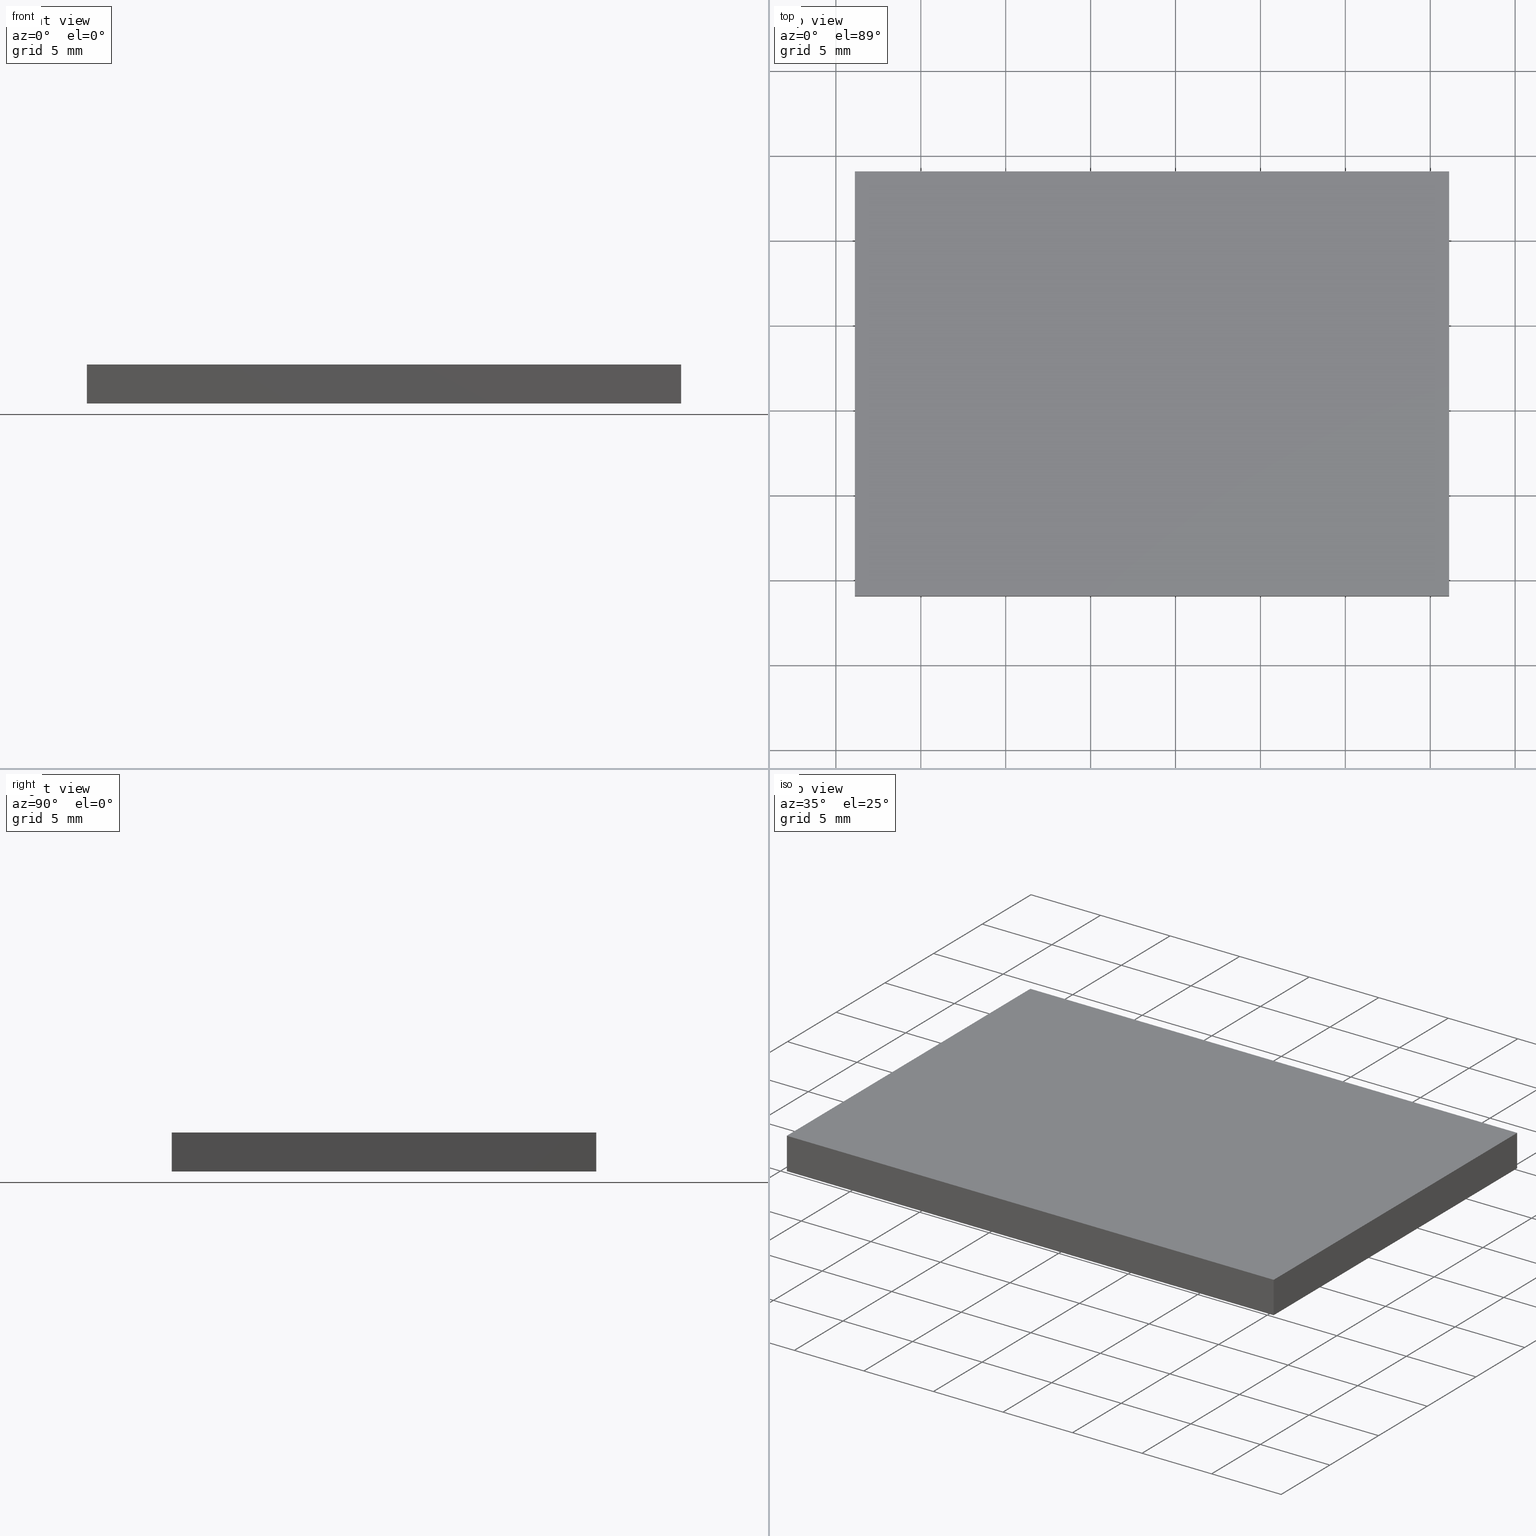
[diagram: canonical four-view strip — front | top / right | iso, engineering-drawing reading convention]
A machine part, canonical four-view strip (front | top / right | iso — engineering-drawing reading convention). The complete STEP part file that produces these views, byte-faithful:
ISO-10303-21;
HEADER;
FILE_DESCRIPTION (( 'STEP AP214' ),
    '1' );
FILE_NAME ('302518.STEP',
    '2019-08-13T06:06:02',
    ( '' ),
    ( '' ),
    'SwSTEP 2.0',
    'SolidWorks 2016',
    '' );
FILE_SCHEMA (( 'AUTOMOTIVE_DESIGN' ));
ENDSEC;

DATA;
#1 = CARTESIAN_POINT ( 'NONE',  ( 126.1149839422837100, 74.06324183452659300, 0.0000000000000000000 ) ) ;
#2 = ORIENTED_EDGE ( 'NONE', *, *, #110, .T. ) ;
#3 = VECTOR ( 'NONE', #91, 1000.000000000000000 ) ;
#4 =( NAMED_UNIT ( * ) PLANE_ANGLE_UNIT ( ) SI_UNIT ( $, .RADIAN. ) );
#5 =( NAMED_UNIT ( * ) SI_UNIT ( $, .STERADIAN. ) SOLID_ANGLE_UNIT ( ) );
#6 = LINE ( 'NONE', #25, #73 ) ;
#7 = PRODUCT_RELATED_PRODUCT_CATEGORY ( 'part', '', ( #96 ) ) ;
#8 = MANIFOLD_SOLID_BREP ( '͹̨-����1', #75 ) ;
#9 = ORIENTED_EDGE ( 'NONE', *, *, #179, .F. ) ;
#10 = STYLED_ITEM ( 'NONE', ( #78 ), #8 ) ;
#11 = FILL_AREA_STYLE_COLOUR ( '', #161 ) ;
#12 = DIRECTION ( 'NONE',  ( 1.000000000000000000, 0.0000000000000000000, -0.0000000000000000000 ) ) ;
#13 = FACE_OUTER_BOUND ( 'NONE', #76, .T. ) ;
#14 =( NAMED_UNIT ( * ) SI_UNIT ( $, .STERADIAN. ) SOLID_ANGLE_UNIT ( ) );
#15 = ORIENTED_EDGE ( 'NONE', *, *, #66, .T. ) ;
#16 =( LENGTH_UNIT ( ) NAMED_UNIT ( * ) SI_UNIT ( .MILLI., .METRE. ) );
#17 = EDGE_CURVE ( 'NONE', #172, #158, #48, .T. ) ;
#18 = LINE ( 'NONE', #177, #166 ) ;
#19 = UNCERTAINTY_MEASURE_WITH_UNIT (LENGTH_MEASURE( 1.000000000000000100E-005 ), #178, 'distance_accuracy_value', 'NONE');
#20 = CARTESIAN_POINT ( 'NONE',  ( 91.11498394228368600, 74.06324183452657900, 2.299999999999999800 ) ) ;
#21 = CARTESIAN_POINT ( 'NONE',  ( 91.11498394228368600, 74.06324183452657900, 2.299999999999999800 ) ) ;
#22 = ORIENTED_EDGE ( 'NONE', *, *, #179, .T. ) ;
#23 = AXIS2_PLACEMENT_3D ( 'NONE', #167, #44, #56 ) ;
#24 = DIRECTION ( 'NONE',  ( 1.000000000000000000, 0.0000000000000000000, -0.0000000000000000000 ) ) ;
#25 = CARTESIAN_POINT ( 'NONE',  ( 126.1149839422836900, 49.06324183452659300, 2.299999999999999800 ) ) ;
#26 = VECTOR ( 'NONE', #129, 1000.000000000000000 ) ;
#27 = CARTESIAN_POINT ( 'NONE',  ( 91.11498394228368600, 74.06324183452657900, 2.299999999999999800 ) ) ;
#28 = DIRECTION ( 'NONE',  ( -0.0000000000000000000, -0.0000000000000000000, -1.000000000000000000 ) ) ;
#29 = LINE ( 'NONE', #164, #153 ) ;
#30 = APPLICATION_PROTOCOL_DEFINITION ( 'draft international standard', 'automotive_design', 1998, #140 ) ;
#31 = LINE ( 'NONE', #20, #26 ) ;
#32 = EDGE_CURVE ( 'NONE', #174, #180, #123, .T. ) ;
#33 = VECTOR ( 'NONE', #50, 1000.000000000000000 ) ;
#34 = AXIS2_PLACEMENT_3D ( 'NONE', #114, #98, #12 ) ;
#35 = LINE ( 'NONE', #1, #99 ) ;
#36 = ORIENTED_EDGE ( 'NONE', *, *, #85, .F. ) ;
#37 = DIRECTION ( 'NONE',  ( -1.110223024625156700E-015, -1.000000000000000000, 0.0000000000000000000 ) ) ;
#38 = SURFACE_SIDE_STYLE ('',( #54 ) ) ;
#39 = CARTESIAN_POINT ( 'NONE',  ( 0.0000000000000000000, 0.0000000000000000000, 2.299999999999999800 ) ) ;
#40 = LINE ( 'NONE', #82, #104 ) ;
#41 = CARTESIAN_POINT ( 'NONE',  ( 91.11498394228368600, 49.06324183452660000, 2.299999999999999800 ) ) ;
#42 = EDGE_CURVE ( 'NONE', #165, #158, #128, .T. ) ;
#43 = DIRECTION ( 'NONE',  ( -0.0000000000000000000, -0.0000000000000000000, -1.000000000000000000 ) ) ;
#44 = DIRECTION ( 'NONE',  ( 1.982541115402066100E-016, 1.000000000000000000, -0.0000000000000000000 ) ) ;
#45 = ORIENTED_EDGE ( 'NONE', *, *, #85, .T. ) ;
#46 = LINE ( 'NONE', #145, #68 ) ;
#47 = EDGE_CURVE ( 'NONE', #115, #174, #29, .T. ) ;
#48 = LINE ( 'NONE', #132, #33 ) ;
#49 = CARTESIAN_POINT ( 'NONE',  ( 91.11498394228368600, 49.06324183452660000, 2.299999999999999800 ) ) ;
#50 = DIRECTION ( 'NONE',  ( -0.0000000000000000000, -0.0000000000000000000, -1.000000000000000000 ) ) ;
#51 = DIRECTION ( 'NONE',  ( 1.000000000000000000, -1.982541115402065800E-016, 0.0000000000000000000 ) ) ;
#52 = DIRECTION ( 'NONE',  ( 3.965082230804128700E-016, -1.000000000000000000, 0.0000000000000000000 ) ) ;
#53 = VECTOR ( 'NONE', #51, 1000.000000000000000 ) ;
#54 = SURFACE_STYLE_FILL_AREA ( #198 ) ;
#55 = CARTESIAN_POINT ( 'NONE',  ( 126.1149839422837100, 74.06324183452659300, 0.0000000000000000000 ) ) ;
#56 = DIRECTION ( 'NONE',  ( -1.000000000000000000, 1.982541115402066100E-016, 0.0000000000000000000 ) ) ;
#57 = SURFACE_STYLE_USAGE ( .BOTH. , #122 ) ;
#58 = FILL_AREA_STYLE ('',( #184 ) ) ;
#59 = COLOUR_RGB ( '',1.000000000000000000, 1.000000000000000000, 1.000000000000000000 ) ;
#60 = ORIENTED_EDGE ( 'NONE', *, *, #156, .T. ) ;
#61 = PRESENTATION_LAYER_ASSIGNMENT (  '', '', ( #10 ) ) ;
#62 = EDGE_LOOP ( 'NONE', ( #144, #109, #63, #196 ) ) ;
#63 = ORIENTED_EDGE ( 'NONE', *, *, #110, .F. ) ;
#64 = FACE_OUTER_BOUND ( 'NONE', #62, .T. ) ;
#65 = ADVANCED_FACE ( 'NONE', ( #13 ), #112, .F. ) ;
#66 = EDGE_CURVE ( 'NONE', #116, #125, #18, .T. ) ;
#67 = DIRECTION ( 'NONE',  ( 1.000000000000000000, -1.982541115402065800E-016, 0.0000000000000000000 ) ) ;
#68 = VECTOR ( 'NONE', #146, 1000.000000000000000 ) ;
#69 = CARTESIAN_POINT ( 'NONE',  ( 126.1149839422836900, 49.06324183452659300, 2.299999999999999800 ) ) ;
#70 = CARTESIAN_POINT ( 'NONE',  ( 0.0000000000000000000, 0.0000000000000000000, 0.0000000000000000000 ) ) ;
#71 =( NAMED_UNIT ( * ) PLANE_ANGLE_UNIT ( ) SI_UNIT ( $, .RADIAN. ) );
#72 = PRESENTATION_LAYER_ASSIGNMENT (  '', '', ( #192 ) ) ;
#73 = VECTOR ( 'NONE', #28, 1000.000000000000000 ) ;
#74 = PRODUCT_CONTEXT ( 'NONE', #188, 'mechanical' ) ;
#75 = CLOSED_SHELL ( 'NONE', ( #65, #195, #92, #160, #130, #159 ) ) ;
#76 = EDGE_LOOP ( 'NONE', ( #60, #142, #36, #95 ) ) ;
#77 = AXIS2_PLACEMENT_3D ( 'NONE', #93, #131, #37 ) ;
#78 = PRESENTATION_STYLE_ASSIGNMENT (( #147 ) ) ;
#79 = CARTESIAN_POINT ( 'NONE',  ( 91.11498394228368600, 49.06324183452660000, 0.0000000000000000000 ) ) ;
#80 = MECHANICAL_DESIGN_GEOMETRIC_PRESENTATION_REPRESENTATION (  '', ( #192 ), #89 ) ;
#81 = CARTESIAN_POINT ( 'NONE',  ( 91.11498394228368600, 74.06324183452657900, 0.0000000000000000000 ) ) ;
#82 = CARTESIAN_POINT ( 'NONE',  ( 91.11498394228368600, 74.06324183452657900, 0.0000000000000000000 ) ) ;
#83 = DIRECTION ( 'NONE',  ( 1.110223024625156700E-015, 1.000000000000000000, -0.0000000000000000000 ) ) ;
#84 = CARTESIAN_POINT ( 'NONE',  ( 91.11498394228368600, 74.06324183452657900, 2.299999999999999800 ) ) ;
#85 = EDGE_CURVE ( 'NONE', #172, #115, #31, .T. ) ;
#86 = LINE ( 'NONE', #41, #53 ) ;
#87 = ORIENTED_EDGE ( 'NONE', *, *, #47, .T. ) ;
#88 = SHAPE_DEFINITION_REPRESENTATION ( #181, #121 ) ;
#89 =( GEOMETRIC_REPRESENTATION_CONTEXT ( 3 ) GLOBAL_UNCERTAINTY_ASSIGNED_CONTEXT ( ( #102 ) ) GLOBAL_UNIT_ASSIGNED_CONTEXT ( ( #16, #4, #5 ) ) REPRESENTATION_CONTEXT ( 'NONE', 'WORKASPACE' ) );
#90 = FACE_OUTER_BOUND ( 'NONE', #175, .T. ) ;
#91 = DIRECTION ( 'NONE',  ( -1.000000000000000000, -3.965082230804128700E-016, -0.0000000000000000000 ) ) ;
#92 = ADVANCED_FACE ( 'NONE', ( #193 ), #194, .F. ) ;
#93 = CARTESIAN_POINT ( 'NONE',  ( 126.1149839422837100, 74.06324183452659300, 2.299999999999999800 ) ) ;
#94 = ORIENTED_EDGE ( 'NONE', *, *, #32, .F. ) ;
#95 = ORIENTED_EDGE ( 'NONE', *, *, #17, .T. ) ;
#96 = PRODUCT ( '302518', '302518', '', ( #74 ) ) ;
#97 =( NAMED_UNIT ( * ) SI_UNIT ( $, .STERADIAN. ) SOLID_ANGLE_UNIT ( ) );
#98 = DIRECTION ( 'NONE',  ( 0.0000000000000000000, 0.0000000000000000000, 1.000000000000000000 ) ) ;
#99 = VECTOR ( 'NONE', #83, 1000.000000000000000 ) ;
#100 = DIRECTION ( 'NONE',  ( 0.0000000000000000000, 0.0000000000000000000, 1.000000000000000000 ) ) ;
#101 = PRESENTATION_STYLE_ASSIGNMENT (( #57 ) ) ;
#102 = UNCERTAINTY_MEASURE_WITH_UNIT (LENGTH_MEASURE( 1.000000000000000100E-005 ), #16, 'distance_accuracy_value', 'NONE');
#103 = ORIENTED_EDGE ( 'NONE', *, *, #124, .F. ) ;
#104 = VECTOR ( 'NONE', #137, 1000.000000000000000 ) ;
#105 = ORIENTED_EDGE ( 'NONE', *, *, #124, .T. ) ;
#106 = ORIENTED_EDGE ( 'NONE', *, *, #32, .T. ) ;
#107 = DIRECTION ( 'NONE',  ( 1.110223024625156700E-015, 1.000000000000000000, -0.0000000000000000000 ) ) ;
#108 = DIRECTION ( 'NONE',  ( -0.0000000000000000000, -0.0000000000000000000, -1.000000000000000000 ) ) ;
#109 = ORIENTED_EDGE ( 'NONE', *, *, #17, .F. ) ;
#110 = EDGE_CURVE ( 'NONE', #125, #172, #46, .T. ) ;
#111 = UNCERTAINTY_MEASURE_WITH_UNIT (LENGTH_MEASURE( 1.000000000000000100E-005 ), #170, 'distance_accuracy_value', 'NONE');
#112 = PLANE ( 'NONE',  #143 ) ;
#113 = FACE_OUTER_BOUND ( 'NONE', #162, .T. ) ;
#114 = CARTESIAN_POINT ( 'NONE',  ( 0.0000000000000000000, 0.0000000000000000000, 0.0000000000000000000 ) ) ;
#115 = VERTEX_POINT ( 'NONE', #49 ) ;
#116 = VERTEX_POINT ( 'NONE', #69 ) ;
#117 = PLANE ( 'NONE',  #173 ) ;
#118 = DIRECTION ( 'NONE',  ( 1.000000000000000000, 0.0000000000000000000, 0.0000000000000000000 ) ) ;
#119 = APPLICATION_PROTOCOL_DEFINITION ( 'draft international standard', 'automotive_design', 1998, #188 ) ;
#120 = EDGE_CURVE ( 'NONE', #116, #180, #6, .T. ) ;
#121 = ADVANCED_BREP_SHAPE_REPRESENTATION ( '302518', ( #8, #148 ), #197 ) ;
#122 = SURFACE_SIDE_STYLE ('',( #127 ) ) ;
#123 = LINE ( 'NONE', #79, #155 ) ;
#124 = EDGE_CURVE ( 'NONE', #180, #165, #35, .T. ) ;
#125 = VERTEX_POINT ( 'NONE', #168 ) ;
#126 = ORIENTED_EDGE ( 'NONE', *, *, #133, .F. ) ;
#127 = SURFACE_STYLE_FILL_AREA ( #58 ) ;
#128 = LINE ( 'NONE', #81, #3 ) ;
#129 = DIRECTION ( 'NONE',  ( 0.0000000000000000000, -1.000000000000000000, 0.0000000000000000000 ) ) ;
#130 = ADVANCED_FACE ( 'NONE', ( #90 ), #117, .T. ) ;
#131 = DIRECTION ( 'NONE',  ( -1.000000000000000000, 1.110223024625156700E-015, 0.0000000000000000000 ) ) ;
#132 = CARTESIAN_POINT ( 'NONE',  ( 91.11498394228368600, 74.06324183452657900, 2.299999999999999800 ) ) ;
#133 = EDGE_CURVE ( 'NONE', #125, #165, #149, .T. ) ;
#134 = DIRECTION ( 'NONE',  ( -0.0000000000000000000, 0.0000000000000000000, -1.000000000000000000 ) ) ;
#135 = DIRECTION ( 'NONE',  ( 0.0000000000000000000, 0.0000000000000000000, 1.000000000000000000 ) ) ;
#136 = CARTESIAN_POINT ( 'NONE',  ( 91.11498394228368600, 49.06324183452660000, 0.0000000000000000000 ) ) ;
#137 = DIRECTION ( 'NONE',  ( 0.0000000000000000000, -1.000000000000000000, 0.0000000000000000000 ) ) ;
#138 = DIRECTION ( 'NONE',  ( 1.000000000000000000, 0.0000000000000000000, -0.0000000000000000000 ) ) ;
#139 =( GEOMETRIC_REPRESENTATION_CONTEXT ( 3 ) GLOBAL_UNCERTAINTY_ASSIGNED_CONTEXT ( ( #19 ) ) GLOBAL_UNIT_ASSIGNED_CONTEXT ( ( #178, #163, #97 ) ) REPRESENTATION_CONTEXT ( 'NONE', 'WORKASPACE' ) );
#140 = APPLICATION_CONTEXT ( 'automotive_design' ) ;
#141 = PRODUCT_DEFINITION ( 'δ֪', '', #157, #199 ) ;
#142 = ORIENTED_EDGE ( 'NONE', *, *, #47, .F. ) ;
#143 = AXIS2_PLACEMENT_3D ( 'NONE', #21, #24, #134 ) ;
#144 = ORIENTED_EDGE ( 'NONE', *, *, #42, .T. ) ;
#145 = CARTESIAN_POINT ( 'NONE',  ( 91.11498394228368600, 74.06324183452657900, 2.299999999999999800 ) ) ;
#146 = DIRECTION ( 'NONE',  ( -1.000000000000000000, -3.965082230804128700E-016, -0.0000000000000000000 ) ) ;
#147 = SURFACE_STYLE_USAGE ( .BOTH. , #38 ) ;
#148 = AXIS2_PLACEMENT_3D ( 'NONE', #70, #100, #118 ) ;
#149 = LINE ( 'NONE', #150, #201 ) ;
#150 = CARTESIAN_POINT ( 'NONE',  ( 126.1149839422837100, 74.06324183452659300, 2.299999999999999800 ) ) ;
#151 = PLANE ( 'NONE',  #187 ) ;
#152 = ORIENTED_EDGE ( 'NONE', *, *, #120, .F. ) ;
#153 = VECTOR ( 'NONE', #108, 1000.000000000000000 ) ;
#154 = ORIENTED_EDGE ( 'NONE', *, *, #156, .F. ) ;
#155 = VECTOR ( 'NONE', #67, 1000.000000000000000 ) ;
#156 = EDGE_CURVE ( 'NONE', #158, #174, #40, .T. ) ;
#157 = PRODUCT_DEFINITION_FORMATION_WITH_SPECIFIED_SOURCE ( '�κ�', '', #96, .NOT_KNOWN. ) ;
#158 = VERTEX_POINT ( 'NONE', #200 ) ;
#159 = ADVANCED_FACE ( 'NONE', ( #189 ), #202, .F. ) ;
#160 = ADVANCED_FACE ( 'NONE', ( #64 ), #151, .F. ) ;
#161 = COLOUR_RGB ( '',1.000000000000000000, 1.000000000000000000, 1.000000000000000000 ) ;
#162 = EDGE_LOOP ( 'NONE', ( #106, #152, #9, #87 ) ) ;
#163 =( NAMED_UNIT ( * ) PLANE_ANGLE_UNIT ( ) SI_UNIT ( $, .RADIAN. ) );
#164 = CARTESIAN_POINT ( 'NONE',  ( 91.11498394228368600, 49.06324183452660000, 2.299999999999999800 ) ) ;
#165 = VERTEX_POINT ( 'NONE', #55 ) ;
#166 = VECTOR ( 'NONE', #107, 1000.000000000000000 ) ;
#167 = CARTESIAN_POINT ( 'NONE',  ( 91.11498394228368600, 49.06324183452660000, 2.299999999999999800 ) ) ;
#168 = CARTESIAN_POINT ( 'NONE',  ( 126.1149839422837100, 74.06324183452659300, 2.299999999999999800 ) ) ;
#169 = PLANE ( 'NONE',  #23 ) ;
#170 =( LENGTH_UNIT ( ) NAMED_UNIT ( * ) SI_UNIT ( .MILLI., .METRE. ) );
#171 = EDGE_LOOP ( 'NONE', ( #105, #126, #183, #176 ) ) ;
#172 = VERTEX_POINT ( 'NONE', #84 ) ;
#173 = AXIS2_PLACEMENT_3D ( 'NONE', #39, #135, #138 ) ;
#174 = VERTEX_POINT ( 'NONE', #136 ) ;
#175 = EDGE_LOOP ( 'NONE', ( #45, #22, #15, #2 ) ) ;
#176 = ORIENTED_EDGE ( 'NONE', *, *, #120, .T. ) ;
#177 = CARTESIAN_POINT ( 'NONE',  ( 126.1149839422837100, 74.06324183452659300, 2.299999999999999800 ) ) ;
#178 =( LENGTH_UNIT ( ) NAMED_UNIT ( * ) SI_UNIT ( .MILLI., .METRE. ) );
#179 = EDGE_CURVE ( 'NONE', #115, #116, #86, .T. ) ;
#180 = VERTEX_POINT ( 'NONE', #182 ) ;
#181 = PRODUCT_DEFINITION_SHAPE ( 'NONE', 'NONE',  #141 ) ;
#182 = CARTESIAN_POINT ( 'NONE',  ( 126.1149839422836900, 49.06324183452659300, 0.0000000000000000000 ) ) ;
#183 = ORIENTED_EDGE ( 'NONE', *, *, #66, .F. ) ;
#184 = FILL_AREA_STYLE_COLOUR ( '', #59 ) ;
#185 = DIRECTION ( 'NONE',  ( 1.000000000000000000, 3.965082230804128700E-016, 0.0000000000000000000 ) ) ;
#186 = ORIENTED_EDGE ( 'NONE', *, *, #42, .F. ) ;
#187 = AXIS2_PLACEMENT_3D ( 'NONE', #27, #52, #185 ) ;
#188 = APPLICATION_CONTEXT ( 'automotive_design' ) ;
#189 = FACE_OUTER_BOUND ( 'NONE', #190, .T. ) ;
#190 = EDGE_LOOP ( 'NONE', ( #154, #186, #103, #94 ) ) ;
#191 = MECHANICAL_DESIGN_GEOMETRIC_PRESENTATION_REPRESENTATION (  '', ( #10 ), #139 ) ;
#192 = STYLED_ITEM ( 'NONE', ( #101 ), #121 ) ;
#193 = FACE_OUTER_BOUND ( 'NONE', #171, .T. ) ;
#194 = PLANE ( 'NONE',  #77 ) ;
#195 = ADVANCED_FACE ( 'NONE', ( #113 ), #169, .F. ) ;
#196 = ORIENTED_EDGE ( 'NONE', *, *, #133, .T. ) ;
#197 =( GEOMETRIC_REPRESENTATION_CONTEXT ( 3 ) GLOBAL_UNCERTAINTY_ASSIGNED_CONTEXT ( ( #111 ) ) GLOBAL_UNIT_ASSIGNED_CONTEXT ( ( #170, #71, #14 ) ) REPRESENTATION_CONTEXT ( 'NONE', 'WORKASPACE' ) );
#198 = FILL_AREA_STYLE ('',( #11 ) ) ;
#199 = PRODUCT_DEFINITION_CONTEXT ( 'detailed design', #140, 'design' ) ;
#200 = CARTESIAN_POINT ( 'NONE',  ( 91.11498394228368600, 74.06324183452657900, 0.0000000000000000000 ) ) ;
#201 = VECTOR ( 'NONE', #43, 1000.000000000000000 ) ;
#202 = PLANE ( 'NONE',  #34 ) ;
ENDSEC;
END-ISO-10303-21;
